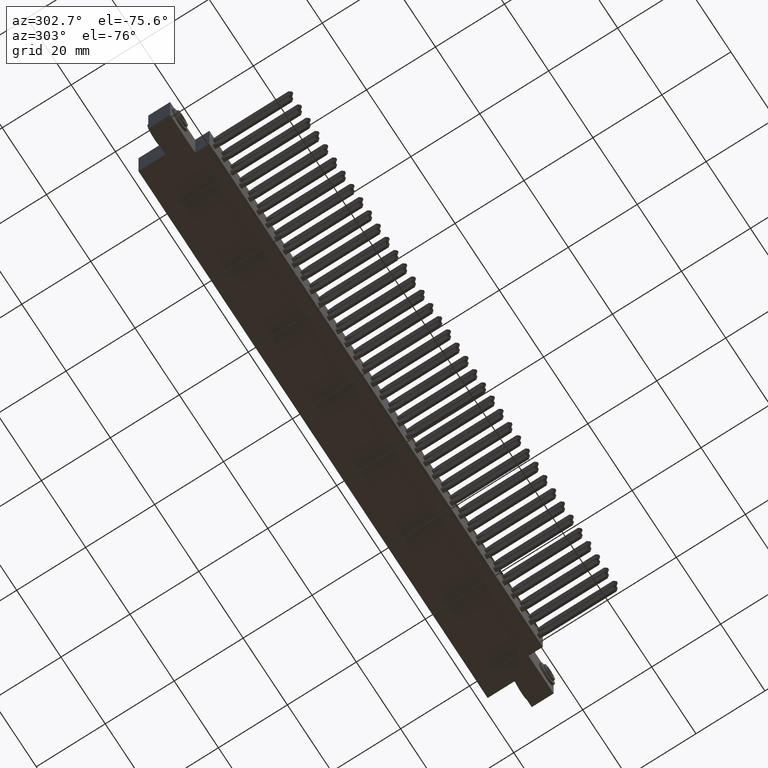
[diagram: clean part render]
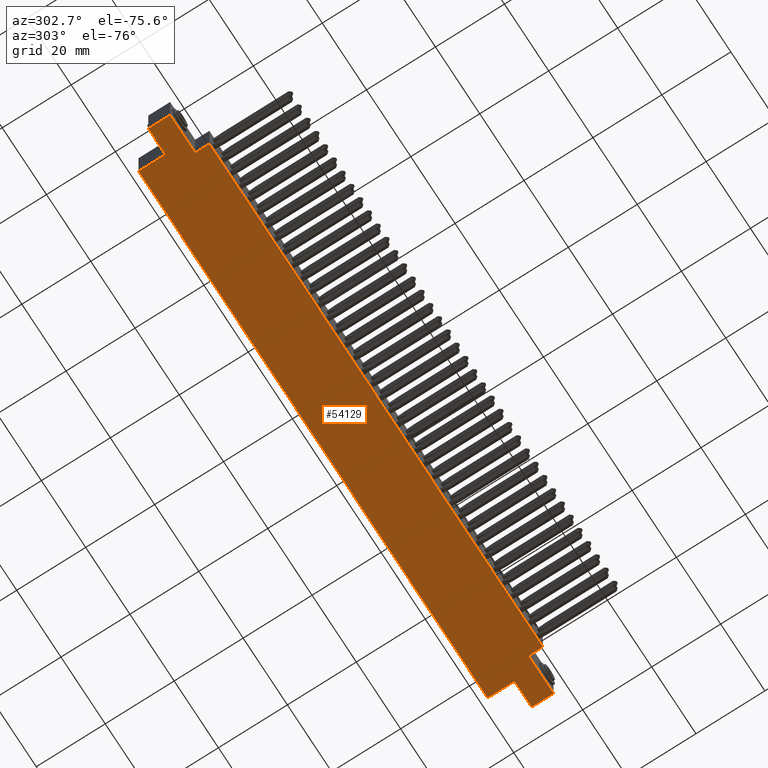
[diagram: same view with one face highlighted and labeled with its STEP entity id]
A machine part, auxiliary view. The second image highlights one B-rep face of the part: STEP entity #54129.
In plain terms, the highlighted planar face has unit normal (0, 0, 1).
Its self-contained STEP definition (entity closure, byte-faithful):
#534 = CARTESIAN_POINT ( 'NONE',  ( 6.821999999999999200, 0.1630000000000000100, -0.5000000000000000000 ) ) ;
#957 = DIRECTION ( 'NONE',  ( 1.000000000000000000, 0.0000000000000000000, 1.227796851085061300E-015 ) ) ;
#1053 = CARTESIAN_POINT ( 'NONE',  ( 0.3050000000000000500, 0.4129999999999999200, -0.5000000000000000000 ) ) ;
#2151 = VERTEX_POINT ( 'NONE', #32644 ) ;
#2813 = CARTESIAN_POINT ( 'NONE',  ( 0.4450000000000002800, 0.0000000000000000000, -0.4999999999999997200 ) ) ;
#2822 = CARTESIAN_POINT ( 'NONE',  ( 0.0000000000000000000, 0.4129999999999999200, -0.5000000000000000000 ) ) ;
#2974 = DIRECTION ( 'NONE',  ( 0.0000000000000000000, 0.0000000000000000000, 1.000000000000000000 ) ) ;
#3015 = CARTESIAN_POINT ( 'NONE',  ( 0.4450000000000002800, 0.1630000000000000100, -0.4999999999999997200 ) ) ;
#3602 = DIRECTION ( 'NONE',  ( -0.0000000000000000000, 1.000000000000000000, -0.0000000000000000000 ) ) ;
#3926 = VERTEX_POINT ( 'NONE', #2813 ) ;
#4085 = LINE ( 'NONE', #48148, #37216 ) ;
#4258 = ORIENTED_EDGE ( 'NONE', *, *, #40147, .T. ) ;
#4793 = EDGE_LOOP ( 'NONE', ( #4258, #14497, #13003, #18922, #34953, #55882, #14705, #8134, #17278, #15258, #53311, #46559 ) ) ;
#5407 = AXIS2_PLACEMENT_3D ( 'NONE', #20010, #2974, #37763 ) ;
#5621 = CARTESIAN_POINT ( 'NONE',  ( 6.516999999999999500, 0.4129999999999999200, -0.5000000000000007800 ) ) ;
#6583 = VERTEX_POINT ( 'NONE', #2822 ) ;
#7148 = CARTESIAN_POINT ( 'NONE',  ( 6.821999999999999200, 0.7199999999999999700, -0.5000000000000000000 ) ) ;
#7356 = VECTOR ( 'NONE', #49105, 39.37007874015748100 ) ;
#7377 = LINE ( 'NONE', #54126, #9441 ) ;
#7508 = LINE ( 'NONE', #15789, #15621 ) ;
#8134 = ORIENTED_EDGE ( 'NONE', *, *, #37974, .F. ) ;
#8768 = VECTOR ( 'NONE', #54638, 39.37007874015748100 ) ;
#8811 = VERTEX_POINT ( 'NONE', #24707 ) ;
#9246 = DIRECTION ( 'NONE',  ( 1.000000000000000000, -0.0000000000000000000, -2.609068308555755300E-015 ) ) ;
#9357 = VECTOR ( 'NONE', #33245, 39.37007874015748100 ) ;
#9441 = VECTOR ( 'NONE', #11319, 39.37007874015748100 ) ;
#10250 = VERTEX_POINT ( 'NONE', #31437 ) ;
#10939 = VERTEX_POINT ( 'NONE', #45145 ) ;
#11163 = VECTOR ( 'NONE', #9246, 39.37007874015748100 ) ;
#11319 = DIRECTION ( 'NONE',  ( -1.000000000000000000, -0.0000000000000000000, -0.0000000000000000000 ) ) ;
#12662 = EDGE_CURVE ( 'NONE', #13334, #6583, #31881, .T. ) ;
#13003 = ORIENTED_EDGE ( 'NONE', *, *, #33924, .F. ) ;
#13334 = VERTEX_POINT ( 'NONE', #1053 ) ;
#14497 = ORIENTED_EDGE ( 'NONE', *, *, #36249, .F. ) ;
#14705 = ORIENTED_EDGE ( 'NONE', *, *, #27052, .F. ) ;
#14814 = VECTOR ( 'NONE', #42602, 39.37007874015748100 ) ;
#15258 = ORIENTED_EDGE ( 'NONE', *, *, #22509, .T. ) ;
#15621 = VECTOR ( 'NONE', #33212, 39.37007874015748100 ) ;
#15789 = CARTESIAN_POINT ( 'NONE',  ( 0.0000000000000000000, 0.7199999999999999700, -0.5000000000000000000 ) ) ;
#15879 = CARTESIAN_POINT ( 'NONE',  ( 0.3049999999999999900, 0.4129999999999999200, -0.5000000000000000000 ) ) ;
#16228 = LINE ( 'NONE', #33572, #8768 ) ;
#17070 = FACE_OUTER_BOUND ( 'NONE', #4793, .T. ) ;
#17278 = ORIENTED_EDGE ( 'NONE', *, *, #27577, .F. ) ;
#18233 = EDGE_CURVE ( 'NONE', #51951, #2151, #16228, .T. ) ;
#18760 = CARTESIAN_POINT ( 'NONE',  ( 6.821999999999999200, 0.4129999999999999200, -0.5000000000000000000 ) ) ;
#18922 = ORIENTED_EDGE ( 'NONE', *, *, #26331, .F. ) ;
#20010 = CARTESIAN_POINT ( 'NONE',  ( 0.0000000000000000000, 0.7199999999999999700, -0.5000000000000000000 ) ) ;
#20776 = VERTEX_POINT ( 'NONE', #29963 ) ;
#21830 = CARTESIAN_POINT ( 'NONE',  ( 0.0000000000000000000, 0.4129999999999999200, -0.5000000000000000000 ) ) ;
#22509 = EDGE_CURVE ( 'NONE', #8811, #27459, #55430, .T. ) ;
#22637 = VERTEX_POINT ( 'NONE', #27749 ) ;
#24707 = CARTESIAN_POINT ( 'NONE',  ( 6.821999999999999200, 0.4129999999999999200, -0.5000000000000000000 ) ) ;
#25174 = CARTESIAN_POINT ( 'NONE',  ( 6.376999999999998900, 0.1630000000000000100, -0.5000000000000000000 ) ) ;
#26331 = EDGE_CURVE ( 'NONE', #6583, #32307, #7508, .T. ) ;
#27052 = EDGE_CURVE ( 'NONE', #10939, #22637, #45335, .T. ) ;
#27459 = VERTEX_POINT ( 'NONE', #55404 ) ;
#27577 = EDGE_CURVE ( 'NONE', #8811, #10250, #50763, .T. ) ;
#27749 = CARTESIAN_POINT ( 'NONE',  ( 0.3049999999999999900, 0.7199999999999999700, -0.5000000000000000000 ) ) ;
#28250 = VECTOR ( 'NONE', #46190, 39.37007874015748100 ) ;
#29963 = CARTESIAN_POINT ( 'NONE',  ( 0.4450000000000002800, 0.1630000000000000100, -0.4999999999999997200 ) ) ;
#31437 = CARTESIAN_POINT ( 'NONE',  ( 6.516999999999999500, 0.4129999999999999200, -0.5000000000000007800 ) ) ;
#31881 = LINE ( 'NONE', #21830, #48177 ) ;
#32307 = VERTEX_POINT ( 'NONE', #39810 ) ;
#32644 = CARTESIAN_POINT ( 'NONE',  ( 6.376999999999998900, 0.0000000000000000000, -0.4999999999999988300 ) ) ;
#33212 = DIRECTION ( 'NONE',  ( -0.0000000000000000000, -1.000000000000000000, -0.0000000000000000000 ) ) ;
#33245 = DIRECTION ( 'NONE',  ( -0.0000000000000000000, -1.000000000000000000, -0.0000000000000000000 ) ) ;
#33572 = CARTESIAN_POINT ( 'NONE',  ( 6.376999999999998900, 0.1630000000000000100, -0.4999999999999988300 ) ) ;
#33839 = CARTESIAN_POINT ( 'NONE',  ( 0.0000000000000000000, 0.7199999999999999700, -0.5000000000000000000 ) ) ;
#33924 = EDGE_CURVE ( 'NONE', #32307, #20776, #4085, .T. ) ;
#34945 = LINE ( 'NONE', #15879, #53284 ) ;
#34953 = ORIENTED_EDGE ( 'NONE', *, *, #12662, .F. ) ;
#36249 = EDGE_CURVE ( 'NONE', #20776, #3926, #45864, .T. ) ;
#36667 = EDGE_CURVE ( 'NONE', #13334, #22637, #34945, .T. ) ;
#37216 = VECTOR ( 'NONE', #957, 39.37007874015748100 ) ;
#37763 = DIRECTION ( 'NONE',  ( 1.000000000000000000, 0.0000000000000000000, -0.0000000000000000000 ) ) ;
#37974 = EDGE_CURVE ( 'NONE', #10250, #10939, #43476, .T. ) ;
#39810 = CARTESIAN_POINT ( 'NONE',  ( 0.0000000000000000000, 0.1630000000000000100, -0.5000000000000000000 ) ) ;
#40147 = EDGE_CURVE ( 'NONE', #2151, #3926, #7377, .T. ) ;
#42602 = DIRECTION ( 'NONE',  ( -1.000000000000000000, -0.0000000000000000000, -0.0000000000000000000 ) ) ;
#43476 = LINE ( 'NONE', #5621, #47675 ) ;
#44913 = DIRECTION ( 'NONE',  ( -1.000000000000000000, -0.0000000000000000000, -0.0000000000000000000 ) ) ;
#45145 = CARTESIAN_POINT ( 'NONE',  ( 6.516999999999999500, 0.7199999999999999700, -0.5000000000000007800 ) ) ;
#45335 = LINE ( 'NONE', #33839, #14814 ) ;
#45864 = LINE ( 'NONE', #3015, #28250 ) ;
#46190 = DIRECTION ( 'NONE',  ( -0.0000000000000000000, -1.000000000000000000, -0.0000000000000000000 ) ) ;
#46559 = ORIENTED_EDGE ( 'NONE', *, *, #18233, .T. ) ;
#47675 = VECTOR ( 'NONE', #53015, 39.37007874015748100 ) ;
#48148 = CARTESIAN_POINT ( 'NONE',  ( 0.0000000000000000000, 0.1630000000000000100, -0.5000000000000002200 ) ) ;
#48177 = VECTOR ( 'NONE', #44913, 39.37007874015748100 ) ;
#49105 = DIRECTION ( 'NONE',  ( -1.000000000000000000, 0.0000000000000000000, -2.463141633631711800E-015 ) ) ;
#50174 = PLANE ( 'NONE',  #5407 ) ;
#50763 = LINE ( 'NONE', #18760, #7356 ) ;
#51951 = VERTEX_POINT ( 'NONE', #25174 ) ;
#52092 = EDGE_CURVE ( 'NONE', #51951, #27459, #55205, .T. ) ;
#53015 = DIRECTION ( 'NONE',  ( -0.0000000000000000000, 1.000000000000000000, -0.0000000000000000000 ) ) ;
#53284 = VECTOR ( 'NONE', #3602, 39.37007874015748100 ) ;
#53311 = ORIENTED_EDGE ( 'NONE', *, *, #52092, .F. ) ;
#54126 = CARTESIAN_POINT ( 'NONE',  ( 0.0000000000000000000, 0.0000000000000000000, -0.5000000000000000000 ) ) ;
#54129 = ADVANCED_FACE ( 'NONE', ( #17070 ), #50174, .F. ) ;
#54638 = DIRECTION ( 'NONE',  ( -0.0000000000000000000, -1.000000000000000000, -0.0000000000000000000 ) ) ;
#55205 = LINE ( 'NONE', #534, #11163 ) ;
#55404 = CARTESIAN_POINT ( 'NONE',  ( 6.821999999999999200, 0.1630000000000000100, -0.5000000000000000000 ) ) ;
#55430 = LINE ( 'NONE', #7148, #9357 ) ;
#55882 = ORIENTED_EDGE ( 'NONE', *, *, #36667, .T. ) ;